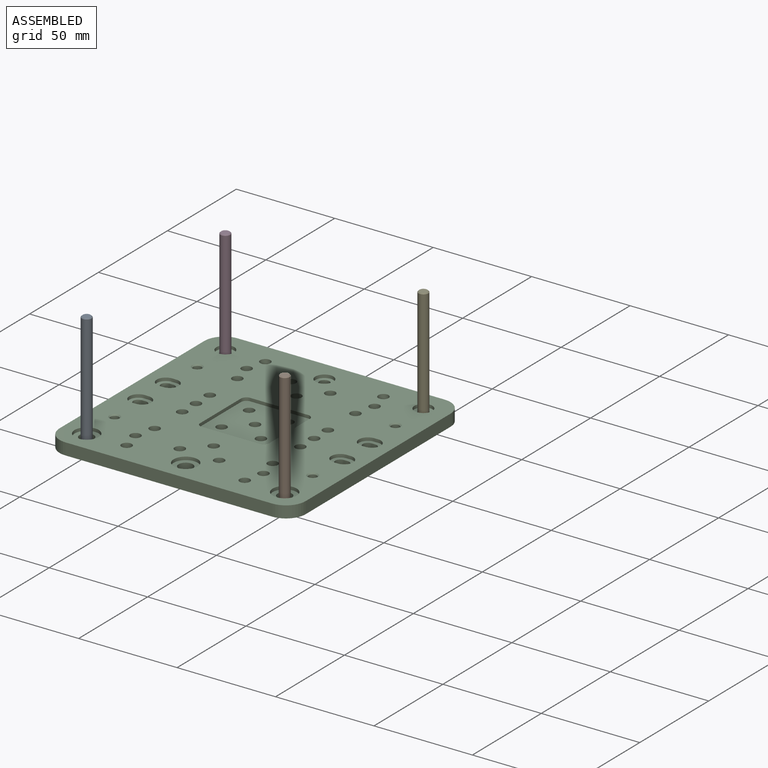
[diagram: assembled view]
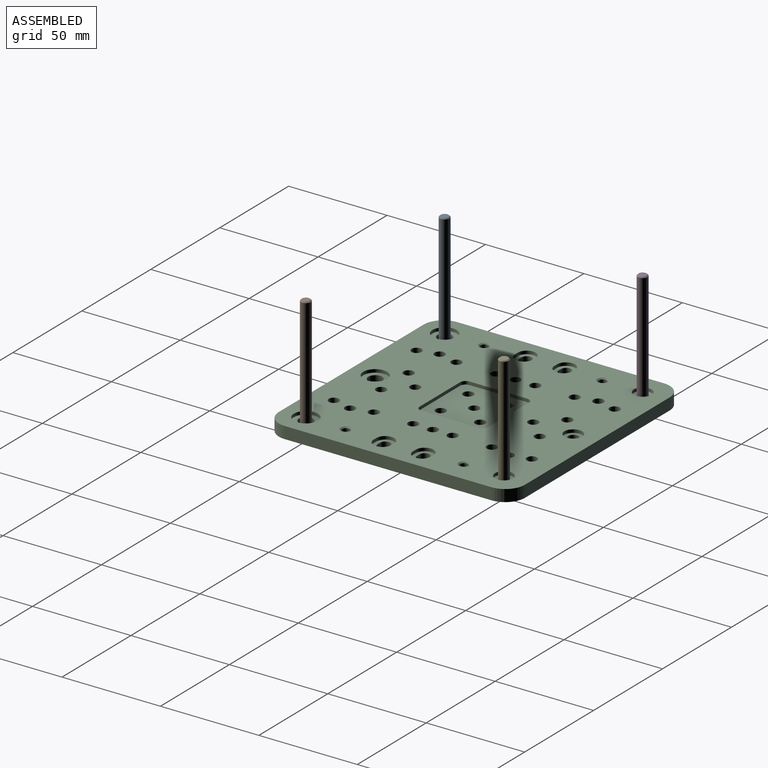
[diagram: assembled view, second angle]
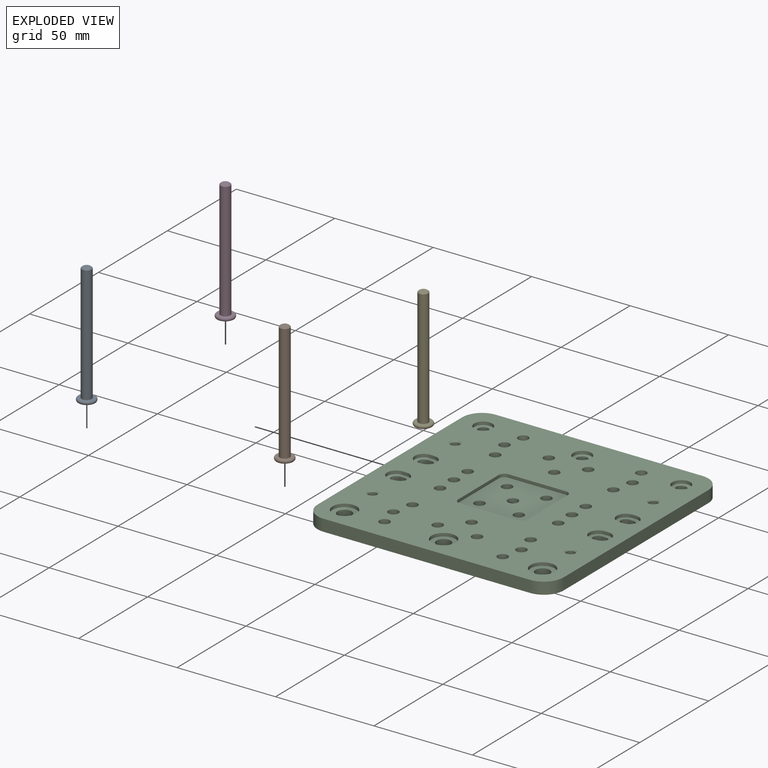
[diagram: exploded view]
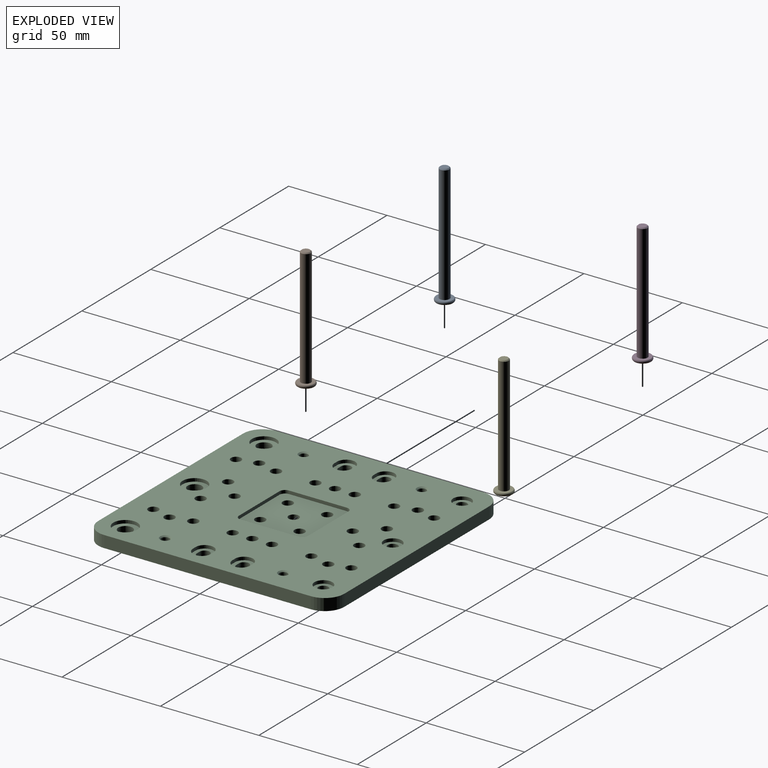
[diagram: exploded view, second angle]
ASSEMBLY  parts=5 mates=4
PART A: 14 faces, bbox 61.5x9.7x9.7 mm
  f0: cone r=1.78mm half-angle=45deg, axis (-1,0,0), area 3.1mm2, adj f3,f6,f7,f8,f9,f10,f11
  f1: torus R=3.5mm, axis (-1,0,0), area 46.7mm2, adj f3,f4
  f2: cylinder r=2.5mm len=59.5mm, axis (1,0,0), area 934.6mm2, adj f4,f13
  f3: plane 8.32x8.32mm, normal (-1,0,0), area 44.4mm2, adj f0,f1
  f4: plane 8.32x8.32mm, normal (1,0,0), area 34.8mm2, adj f1,f2
  f5: plane 3.46x3mm, normal (-1,0,0), area 7.8mm2, adj f6,f7,f8,f9,f10,f11
  f6: plane 2.25x1.5mm, normal (0,-0.5,-0.87), area 3.6mm2, adj f0,f5,f7,f11
  f7: plane 2.25x1.73mm, normal (0,-1,0), area 3.6mm2, adj f0,f5,f6,f8
  f8: plane 2.25x1.5mm, normal (0,-0.5,0.87), area 3.6mm2, adj f0,f5,f7,f9
  f9: plane 2.25x1.5mm, normal (0,0.5,0.87), area 3.6mm2, adj f0,f5,f8,f10
  f10: plane 2.25x1.73mm, normal (0,1,0), area 3.6mm2, adj f0,f5,f9,f11
  f11: plane 2.25x1.5mm, normal (0,0.5,-0.87), area 3.6mm2, adj f0,f5,f6,f10
  f12: plane 4x4mm, normal (1,0,0), area 12.6mm2, adj f13
  f13: cone r=2mm half-angle=45deg, axis (-1,0,0), area 10mm2, adj f2,f12
PART B: same geometry as A
PART C: 110 faces, bbox 125x125x6 mm
  f0: cone r=2.1mm half-angle=45deg, axis (0,0,1), area 12.8mm2, adj f7,f73
  f1: cone r=2.1mm half-angle=45deg, axis (0,0,1), area 12.8mm2, adj f4,f73
  f2: cone r=2.1mm half-angle=45deg, axis (0,0,1), area 12.8mm2, adj f5,f73
  f3: cone r=2.1mm half-angle=45deg, axis (0,0,1), area 12.8mm2, adj f6,f73
  f4: cylinder r=2.1mm len=5.4mm, axis (0,0,1), area 71.3mm2, adj f1,f74
  f5: cylinder r=2.1mm len=5.4mm, axis (0,0,1), area 71.3mm2, adj f2,f74
  f6: cylinder r=2.1mm len=5.4mm, axis (0,0,1), area 71.3mm2, adj f3,f74
  f7: cylinder r=2.1mm len=5.4mm, axis (0,0,1), area 71.3mm2, adj f0,f74
  f8: cylinder r=4.57mm len=9.14mm, axis (0,0,1), area 23mm2, adj f73,f98,f100,f101
  f9: cylinder r=4.57mm len=9.14mm, axis (0,0,1), area 23mm2, adj f73,f94,f96,f97
  f10: cylinder r=4.57mm len=9.14mm, axis (0,0,1), area 23mm2, adj f73,f90,f91,f93
  f11: cylinder r=4.57mm len=9.14mm, axis (0,0,1), area 23mm2, adj f73,f86,f87,f89
  f12: cylinder r=6.12mm len=12.25mm, axis (0,0,1), area 61.6mm2, adj f73,f85
  f13: cylinder r=6.12mm len=12.25mm, axis (0,0,1), area 61.6mm2, adj f73,f84
  f14: cylinder r=6.12mm len=12.25mm, axis (0,0,1), area 61.6mm2, adj f73,f83
  f15: cylinder r=4.57mm len=9.14mm, axis (0,0,1), area 45.9mm2, adj f73,f82
  f16: cylinder r=4.57mm len=9.14mm, axis (0,0,1), area 45.9mm2, adj f73,f81
  f17: cylinder r=4.57mm len=9.14mm, axis (0,0,1), area 45.9mm2, adj f73,f80
  f18: cylinder r=2.6mm len=6mm, axis (0,0,1), area 98mm2, adj f73,f74
  f19: cylinder r=2.6mm len=6mm, axis (0,0,1), area 98mm2, adj f73,f74
  f20: cylinder r=2.6mm len=6mm, axis (0,0,1), area 98mm2, adj f73,f74
  f21: cylinder r=2.6mm len=6mm, axis (0,0,1), area 98mm2, adj f73,f74
  f22: cylinder r=2.6mm len=6mm, axis (0,0,1), area 98mm2, adj f73,f74
  f23: cylinder r=2.6mm len=6mm, axis (0,0,1), area 98mm2, adj f73,f74
  f24: cylinder r=2.6mm len=6mm, axis (0,0,1), area 98mm2, adj f73,f74
  f25: cylinder r=2.6mm len=6mm, axis (0,0,1), area 98mm2, adj f73,f74
  f26: cylinder r=2.6mm len=6mm, axis (0,0,1), area 98mm2, adj f73,f74
  f27: cylinder r=2.6mm len=6mm, axis (0,0,1), area 98mm2, adj f73,f74
  f28: cylinder r=2.6mm len=6mm, axis (0,0,1), area 98mm2, adj f73,f74
  f29: cylinder r=2.6mm len=6mm, axis (0,0,1), area 98mm2, adj f73,f74
  f30: cylinder r=2.6mm len=6mm, axis (0,0,1), area 98mm2, adj f73,f74
  f31: cylinder r=2.6mm len=6mm, axis (0,0,1), area 98mm2, adj f73,f74
  f32: cylinder r=2.6mm len=6mm, axis (0,0,1), area 98mm2, adj f73,f74
  f33: cylinder r=2.6mm len=6mm, axis (0,0,1), area 98mm2, adj f73,f74
  f34: cylinder r=2.6mm len=6mm, axis (0,0,1), area 98mm2, adj f73,f74
  f35: cylinder r=2.6mm len=6mm, axis (0,0,1), area 98mm2, adj f73,f74
  f36: cylinder r=2.6mm len=6mm, axis (0,0,1), area 98mm2, adj f73,f74
  f37: cylinder r=2.6mm len=6mm, axis (0,0,1), area 98mm2, adj f73,f74
  f38: cylinder r=2.6mm len=6mm, axis (0,0,1), area 98mm2, adj f73,f74
  f39: cylinder r=2.6mm len=6mm, axis (0,0,1), area 98mm2, adj f73,f74
  f40: cylinder r=2.6mm len=6mm, axis (0,0,1), area 98mm2, adj f73,f74
  f41: cylinder r=2.6mm len=6mm, axis (0,0,1), area 98mm2, adj f73,f74
  f42: cylinder r=2.6mm len=5.2mm, axis (0,0,1), area 71.9mm2, adj f74,f75
  f43: cylinder r=2.6mm len=5.2mm, axis (0,0,1), area 71.9mm2, adj f74,f75
  f44: cylinder r=2.6mm len=5.2mm, axis (0,0,1), area 71.9mm2, adj f74,f75
  f45: cylinder r=2.6mm len=5.2mm, axis (0,0,1), area 71.9mm2, adj f74,f75
  f46: cylinder r=2.6mm len=5.2mm, axis (0,0,1), area 71.9mm2, adj f74,f75
  f47: cylinder r=2.55mm len=5.1mm, axis (0,0,1), area 70.5mm2, adj f74,f80
  f48: cylinder r=2.55mm len=5.1mm, axis (0,0,1), area 70.5mm2, adj f74,f81
  f49: cylinder r=2.55mm len=5.1mm, axis (0,0,1), area 70.5mm2, adj f74,f82
  f50: cylinder r=3.6mm len=7.2mm, axis (0,0,1), area 99.5mm2, adj f74,f83
  f51: cylinder r=3.6mm len=7.2mm, axis (0,0,1), area 99.5mm2, adj f74,f84
  f52: cylinder r=3.6mm len=7.2mm, axis (0,0,1), area 99.5mm2, adj f74,f85
  f53: cylinder r=2.55mm len=5.1mm, axis (0,0,1), area 35.2mm2, adj f66,f68,f74,f86
  f54: cylinder r=2.55mm len=5.1mm, axis (0,0,1), area 35.2mm2, adj f63,f65,f74,f90
  f55: cylinder r=2.55mm len=5.1mm, axis (0,0,1), area 35.2mm2, adj f61,f62,f74,f94
  f56: cylinder r=2.55mm len=5.1mm, axis (0,0,1), area 35.2mm2, adj f58,f59,f74,f98
  f57: cylinder r=2.55mm len=5.1mm, axis (0,0,1), area 35.2mm2, adj f58,f59,f74,f98
  f58: plane 4.4x2mm, normal (0,-1,0), area 8.8mm2, adj f56,f57,f74,f98
  f59: plane 4.4x2mm, normal (0,1,0), area 8.8mm2, adj f56,f57,f74,f98
  f60: cylinder r=2.55mm len=5.1mm, axis (0,0,1), area 35.2mm2, adj f61,f62,f74,f94
  f61: plane 4.4x2mm, normal (0,-1,0), area 8.8mm2, adj f55,f60,f74,f94
  f62: plane 4.4x2mm, normal (0,1,0), area 8.8mm2, adj f55,f60,f74,f94
  f63: plane 4.4x2mm, normal (0,1,0), area 8.8mm2, adj f54,f64,f74,f90
  f64: cylinder r=2.55mm len=5.1mm, axis (0,0,1), area 35.2mm2, adj f63,f65,f74,f90
  f65: plane 4.4x2mm, normal (0,-1,0), area 8.8mm2, adj f54,f64,f74,f90
  f66: plane 4.4x2mm, normal (0,1,0), area 8.8mm2, adj f53,f67,f74,f86
  f67: cylinder r=2.55mm len=5.1mm, axis (0,0,1), area 35.2mm2, adj f66,f68,f74,f86
  f68: plane 4.4x2mm, normal (0,-1,0), area 8.8mm2, adj f53,f67,f74,f86
  f69: plane 105x6mm, normal (-1,0,0), area 630mm2, adj f73,f74,f102,f105
  f70: plane 105x6mm, normal (0,-1,0), area 630mm2, adj f73,f74,f104,f105
  f71: plane 105x6mm, normal (1,0,0), area 630mm2, adj f73,f74,f103,f104
  f72: plane 105x6mm, normal (0,1,0), area 630mm2, adj f73,f74,f102,f103
  f73: plane 125x125mm, normal (0,0,1), area 12834.1mm2, adj f0,f1,f2,f3,f8,f9,f10,f11
  f74: plane 125x125mm, normal (0,0,-1), area 14561.9mm2, adj f4,f5,f6,f7,f18,f19,f20,f21
  f75: plane 35x35mm, normal (0,0,1), area 1112.1mm2, adj f42,f43,f44,f45,f46,f76,f77,f78
  f76: plane 29.4x1.6mm, normal (1,0,0), area 47mm2, adj f73,f75,f107,f109
  f77: plane 29.4x1.6mm, normal (0,-1,0), area 47mm2, adj f73,f75,f108,f109
  f78: plane 29.4x1.6mm, normal (-1,0,0), area 47mm2, adj f73,f75,f106,f108
  f79: plane 29.4x1.6mm, normal (0,1,0), area 47mm2, adj f73,f75,f106,f107
  f80: plane 9.14x9.14mm, normal (0,0,1), area 45.1mm2, adj f17,f47
  f81: plane 9.14x9.14mm, normal (0,0,1), area 45.1mm2, adj f16,f48
  f82: plane 9.14x9.14mm, normal (0,0,1), area 45.1mm2, adj f15,f49
  f83: plane 12.25x12.25mm, normal (0,0,1), area 77.1mm2, adj f14,f50
  f84: plane 12.25x12.25mm, normal (0,0,1), area 77.1mm2, adj f13,f51
  f85: plane 12.25x12.25mm, normal (0,0,1), area 77.1mm2, adj f12,f52
  f86: plane 11.14x9.14mm, normal (0,0,1), area 53.2mm2, adj f11,f53,f66,f67,f68,f87,f88,f89
  f87: plane 2x1.6mm, normal (0,1,0), area 3.2mm2, adj f11,f73,f86,f88
  f88: cylinder r=4.57mm len=9.14mm, axis (0,0,1), area 23mm2, adj f73,f86,f87,f89
  f89: plane 2x1.6mm, normal (0,-1,0), area 3.2mm2, adj f11,f73,f86,f88
  f90: plane 11.14x9.14mm, normal (0,0,1), area 53.2mm2, adj f10,f54,f63,f64,f65,f91,f92,f93
  f91: plane 2x1.6mm, normal (0,1,0), area 3.2mm2, adj f10,f73,f90,f92
  f92: cylinder r=4.57mm len=9.14mm, axis (0,0,1), area 23mm2, adj f73,f90,f91,f93
  f93: plane 2x1.6mm, normal (0,-1,0), area 3.2mm2, adj f10,f73,f90,f92
  f94: plane 11.14x9.14mm, normal (0,0,1), area 53.2mm2, adj f9,f55,f60,f61,f62,f95,f96,f97
  f95: cylinder r=4.57mm len=9.14mm, axis (0,0,1), area 23mm2, adj f73,f94,f96,f97
  f96: plane 2x1.6mm, normal (0,-1,0), area 3.2mm2, adj f9,f73,f94,f95
  f97: plane 2x1.6mm, normal (0,1,0), area 3.2mm2, adj f9,f73,f94,f95
  f98: plane 11.14x9.14mm, normal (0,0,1), area 53.2mm2, adj f8,f56,f57,f58,f59,f99,f100,f101
  f99: cylinder r=4.57mm len=9.14mm, axis (0,0,1), area 23mm2, adj f73,f98,f100,f101
  f100: plane 2x1.6mm, normal (0,-1,0), area 3.2mm2, adj f8,f73,f98,f99
  f101: plane 2x1.6mm, normal (0,1,0), area 3.2mm2, adj f8,f73,f98,f99
  f102: cylinder r=10mm len=10mm, axis (0,0,-1), area 94.2mm2, adj f69,f72,f73,f74
  f103: cylinder r=10mm len=10mm, axis (0,0,-1), area 94.2mm2, adj f71,f72,f73,f74
  f104: cylinder r=10mm len=10mm, axis (0,0,-1), area 94.2mm2, adj f70,f71,f73,f74
  f105: cylinder r=10mm len=10mm, axis (0,0,-1), area 94.2mm2, adj f69,f70,f73,f74
  f106: cylinder r=2.8mm len=2.8mm, axis (0,0,-1), area 7mm2, adj f73,f75,f78,f79
  f107: cylinder r=2.8mm len=2.8mm, axis (0,0,-1), area 7mm2, adj f73,f75,f76,f79
  f108: cylinder r=2.8mm len=2.8mm, axis (0,0,-1), area 7mm2, adj f73,f75,f77,f78
  f109: cylinder r=2.8mm len=2.8mm, axis (0,0,-1), area 7mm2, adj f73,f75,f76,f77
PART D: same geometry as A
PART E: same geometry as A
PLACE A rot(axis=(0,-1,0),90deg) t=(-50.3,-76.62,19)mm
PLACE B rot(axis=(0,-1,0),90deg) t=(50.3,-76.62,19)mm
PLACE C t=(0,-0.62,-6)mm fixed
PLACE D rot(axis=(0,-1,0),90deg) t=(-50.3,23.98,19)mm
PLACE E rot(axis=(0,-1,0),90deg) t=(50.3,23.98,19)mm
MATE fastened D.f2 <-> C.f17  axis (0,0,1) through (-50.3,49.68,-6)mm
MATE fastened A.f2 <-> C.f14  axis (0,0,1) through (-50.3,-50.92,-6)mm
MATE fastened B.f2 <-> C.f12  axis (0,0,1) through (50.3,-50.92,-6)mm
MATE fastened E.f2 <-> C.f15  axis (0,0,1) through (50.3,49.68,-6)mm
